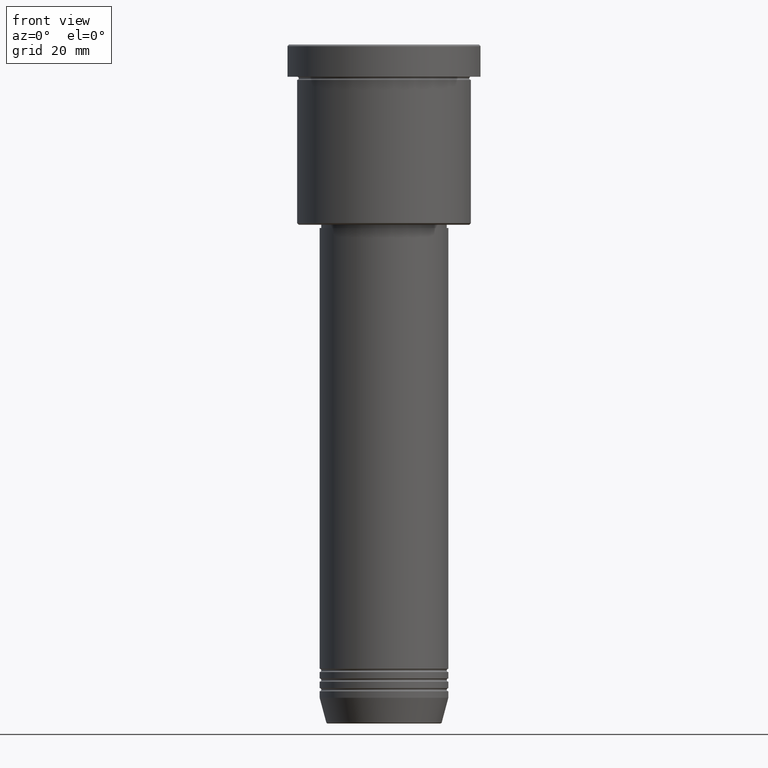
[diagram: clean part render]
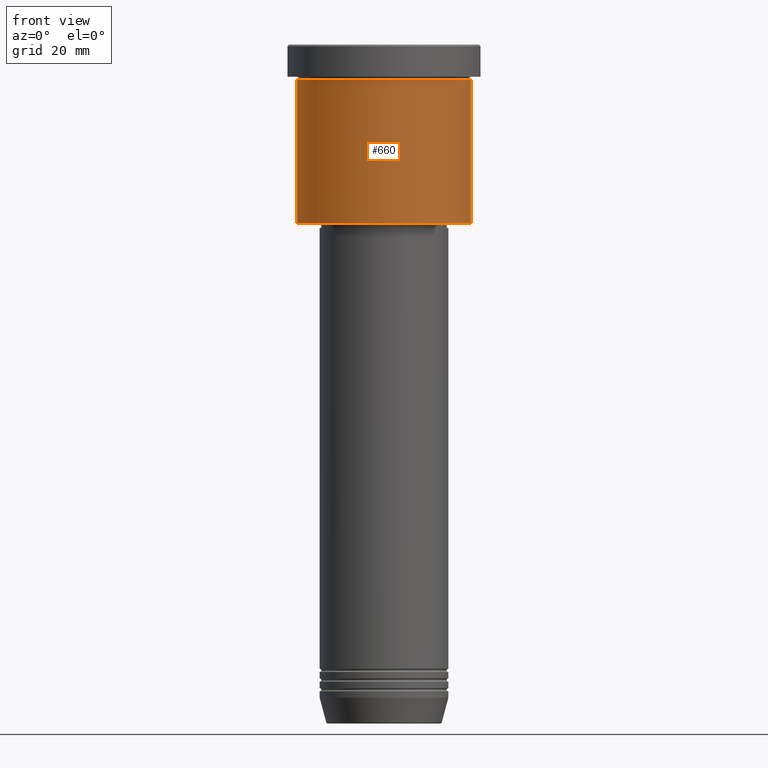
[diagram: same view with one face highlighted and labeled with its STEP entity id]
A machine part, front view. The second image highlights one B-rep face of the part: STEP entity #660.
In plain terms, the highlighted cylindrical surface (partial cylindrical patch) has radius 27 mm, axis along (-0, -0, 1).
Its self-contained STEP definition (entity closure, byte-faithful):
#31 = DIRECTION ( 'NONE',  ( 1.000000000000000000, 0.000000000000000000, 0.000000000000000000 ) ) ;
#51 = DIRECTION ( 'NONE',  ( -0.000000000000000000, -0.000000000000000000, 1.000000000000000000 ) ) ;
#59 = CARTESIAN_POINT ( 'NONE',  ( 27.00000000000000355, 0.000000000000000000, -10.99999999999999289 ) ) ;
#94 = AXIS2_PLACEMENT_3D ( 'NONE', #921, #51, #31 ) ;
#99 = VERTEX_POINT ( 'NONE', #935 ) ;
#127 = EDGE_CURVE ( 'NONE', #158, #99, #191, .T. ) ;
#153 = VECTOR ( 'NONE', #1091, 1000.000000000000000 ) ;
#158 = VERTEX_POINT ( 'NONE', #852 ) ;
#191 = CIRCLE ( 'NONE', #819, 27.00000000000000355 ) ;
#201 = ORIENTED_EDGE ( 'NONE', *, *, #1165, .T. ) ;
#205 = VERTEX_POINT ( 'NONE', #59 ) ;
#208 = FACE_OUTER_BOUND ( 'NONE', #631, .T. ) ;
#226 = DIRECTION ( 'NONE',  ( -0.000000000000000000, -0.000000000000000000, 1.000000000000000000 ) ) ;
#262 = VERTEX_POINT ( 'NONE', #1150 ) ;
#334 = VECTOR ( 'NONE', #1070, 1000.000000000000000 ) ;
#364 = ORIENTED_EDGE ( 'NONE', *, *, #367, .F. ) ;
#367 = EDGE_CURVE ( 'NONE', #262, #205, #858, .T. ) ;
#379 = ORIENTED_EDGE ( 'NONE', *, *, #127, .T. ) ;
#472 = CARTESIAN_POINT ( 'NONE',  ( -27.00000000000000355, 3.306546357697854128E-15, 0.000000000000000000 ) ) ;
#489 = DIRECTION ( 'NONE',  ( -1.000000000000000000, 0.000000000000000000, 0.000000000000000000 ) ) ;
#492 = CARTESIAN_POINT ( 'NONE',  ( 27.00000000000000355, 0.000000000000000000, 0.000000000000000000 ) ) ;
#549 = EDGE_CURVE ( 'NONE', #158, #262, #816, .T. ) ;
#577 = CARTESIAN_POINT ( 'NONE',  ( 0.000000000000000000, 0.000000000000000000, 0.000000000000000000 ) ) ;
#631 = EDGE_LOOP ( 'NONE', ( #912, #379, #201, #364 ) ) ;
#637 = AXIS2_PLACEMENT_3D ( 'NONE', #577, #226, #844 ) ;
#660 = ADVANCED_FACE ( 'NONE', ( #208 ), #1034, .T. ) ;
#701 = LINE ( 'NONE', #492, #334 ) ;
#752 = CARTESIAN_POINT ( 'NONE',  ( 0.000000000000000000, 0.000000000000000000, -55.49999999999997868 ) ) ;
#816 = LINE ( 'NONE', #472, #153 ) ;
#819 = AXIS2_PLACEMENT_3D ( 'NONE', #752, #1112, #489 ) ;
#844 = DIRECTION ( 'NONE',  ( 1.000000000000000000, 0.000000000000000000, 0.000000000000000000 ) ) ;
#852 = CARTESIAN_POINT ( 'NONE',  ( -27.00000000000000355, 3.306546357697854128E-15, -55.49999999999997868 ) ) ;
#858 = CIRCLE ( 'NONE', #94, 27.00000000000000355 ) ;
#912 = ORIENTED_EDGE ( 'NONE', *, *, #549, .F. ) ;
#921 = CARTESIAN_POINT ( 'NONE',  ( 0.000000000000000000, 0.000000000000000000, -10.99999999999999289 ) ) ;
#935 = CARTESIAN_POINT ( 'NONE',  ( 27.00000000000000355, 0.000000000000000000, -55.49999999999997868 ) ) ;
#1034 = CYLINDRICAL_SURFACE ( 'NONE', #637, 27.00000000000000355 ) ;
#1070 = DIRECTION ( 'NONE',  ( -0.000000000000000000, -0.000000000000000000, 1.000000000000000000 ) ) ;
#1091 = DIRECTION ( 'NONE',  ( -0.000000000000000000, -0.000000000000000000, 1.000000000000000000 ) ) ;
#1112 = DIRECTION ( 'NONE',  ( -0.000000000000000000, -0.000000000000000000, 1.000000000000000000 ) ) ;
#1150 = CARTESIAN_POINT ( 'NONE',  ( -27.00000000000000355, 3.306546357697854128E-15, -10.99999999999999289 ) ) ;
#1165 = EDGE_CURVE ( 'NONE', #99, #205, #701, .T. ) ;